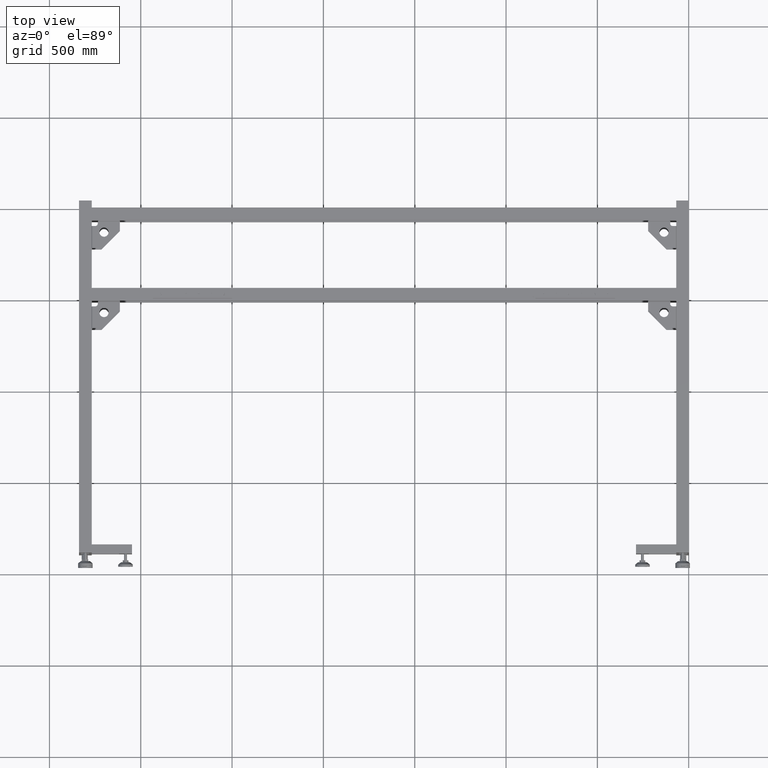
[diagram: clean part render]
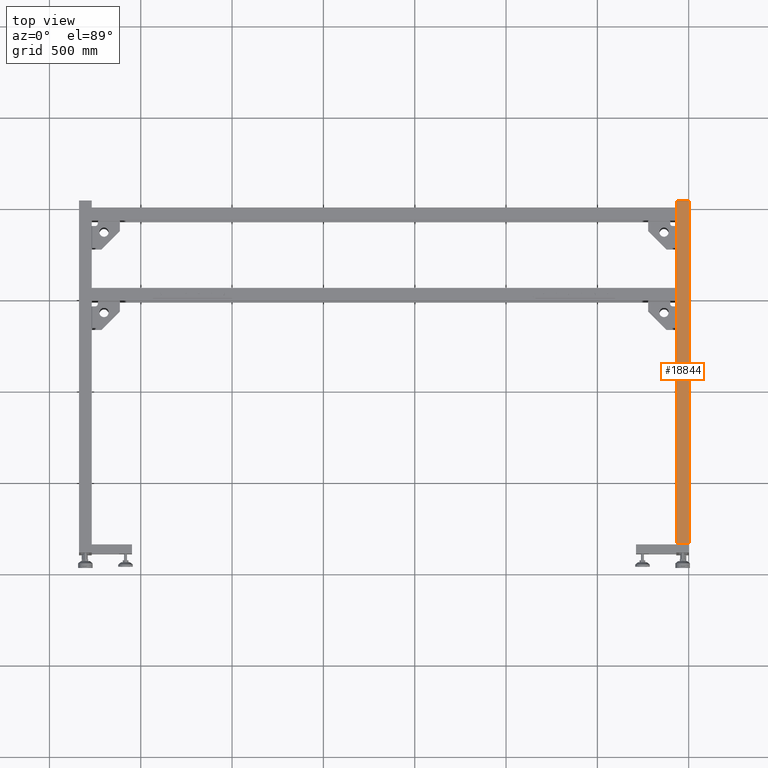
[diagram: same view with one face highlighted and labeled with its STEP entity id]
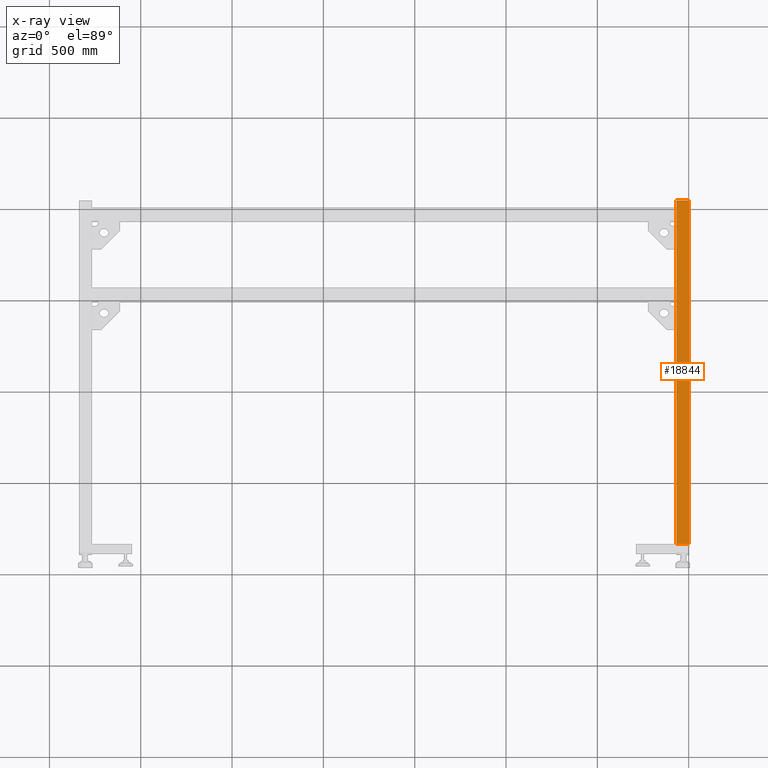
[diagram: x-ray of the same camera — body ghosted, the highlighted face saturated]
A machine part, top view. The second image highlights one B-rep face of the part: STEP entity #18844.
The next image is the same camera in x-ray: the body ghosted, the highlighted face saturated — about 0% of this face is hidden behind the body in this view.
In plain terms, the highlighted planar face has unit normal (0, -0, -1).
Its self-contained STEP definition (entity closure, byte-faithful):
#1355 = ORIENTED_EDGE ( 'NONE', *, *, #64538, .F. ) ;
#4251 = VERTEX_POINT ( 'NONE', #30326 ) ;
#4723 = DIRECTION ( 'NONE',  ( 0.000000000000000000, -0.000000000000000000, -1.000000000000000000 ) ) ;
#6874 = EDGE_CURVE ( 'NONE', #24596, #14394, #61690, .T. ) ;
#7368 = LINE ( 'NONE', #19636, #14964 ) ;
#7399 = ORIENTED_EDGE ( 'NONE', *, *, #49551, .T. ) ;
#12030 = CARTESIAN_POINT ( 'NONE',  ( 1931.827512562814491, 986.4410804020120622, 250.0000000000000000 ) ) ;
#12584 = DIRECTION ( 'NONE',  ( 1.000000000000000000, 4.543257172554223644E-16, 0.000000000000000000 ) ) ;
#13719 = EDGE_CURVE ( 'NONE', #14394, #37972, #55825, .T. ) ;
#14394 = VERTEX_POINT ( 'NONE', #73962 ) ;
#14859 = VECTOR ( 'NONE', #29672, 1000.000000000000000 ) ;
#14964 = VECTOR ( 'NONE', #32343, 1000.000000000000000 ) ;
#17370 = CARTESIAN_POINT ( 'NONE',  ( 1966.827512562814263, 1011.441080402012176, 250.0000000000000000 ) ) ;
#17521 = VERTEX_POINT ( 'NONE', #40252 ) ;
#17526 = VECTOR ( 'NONE', #23885, 1000.000000000000000 ) ;
#18265 = CARTESIAN_POINT ( 'NONE',  ( 1931.827512562814491, 986.4410804020120622, 250.0000000000000000 ) ) ;
#18844 = ADVANCED_FACE ( 'NONE', ( #41159 ), #53437, .F. ) ;
#19262 = CARTESIAN_POINT ( 'NONE',  ( 1931.811469511922496, 986.4410804020146770, 249.9999999999999716 ) ) ;
#19567 = CARTESIAN_POINT ( 'NONE',  ( 1931.827512562814491, 1036.441080402012176, 250.0000000000000000 ) ) ;
#19636 = CARTESIAN_POINT ( 'NONE',  ( 1931.827512562814491, -844.5589195979878241, 249.9999999999999716 ) ) ;
#19804 = VERTEX_POINT ( 'NONE', #25052 ) ;
#20082 = DIRECTION ( 'NONE',  ( -1.000000000000000000, -2.039995195632243709E-15, 0.000000000000000000 ) ) ;
#23885 = DIRECTION ( 'NONE',  ( 4.543257172554223644E-16, -1.000000000000000000, 0.000000000000000000 ) ) ;
#24596 = VERTEX_POINT ( 'NONE', #19567 ) ;
#25052 = CARTESIAN_POINT ( 'NONE',  ( 1931.827512562814491, 996.9410804020119485, 249.9999999999999716 ) ) ;
#25387 = LINE ( 'NONE', #19262, #41282 ) ;
#26941 = EDGE_CURVE ( 'NONE', #4251, #44653, #43440, .T. ) ;
#29128 = ORIENTED_EDGE ( 'NONE', *, *, #13719, .F. ) ;
#29672 = DIRECTION ( 'NONE',  ( -4.543257172554223644E-16, 1.000000000000000000, 0.000000000000000000 ) ) ;
#29771 = VECTOR ( 'NONE', #12584, 1000.000000000000000 ) ;
#30326 = CARTESIAN_POINT ( 'NONE',  ( 1931.827512562813808, 919.4410804020121759, 249.9999999999999716 ) ) ;
#30364 = ORIENTED_EDGE ( 'NONE', *, *, #35595, .F. ) ;
#30952 = ORIENTED_EDGE ( 'NONE', *, *, #52151, .T. ) ;
#32012 = CARTESIAN_POINT ( 'NONE',  ( 1931.827512562814491, -844.5589195979878241, 249.9999999999999716 ) ) ;
#32343 = DIRECTION ( 'NONE',  ( -4.543257172554223644E-16, 1.000000000000000000, 0.000000000000000000 ) ) ;
#33070 = EDGE_LOOP ( 'NONE', ( #41446, #64398, #30952, #77175, #30364, #7399, #29128, #63059, #1355 ) ) ;
#33172 = CARTESIAN_POINT ( 'NONE',  ( 2001.827512562814491, 986.4410804020120622, 250.0000000000000000 ) ) ;
#33475 = VERTEX_POINT ( 'NONE', #32012 ) ;
#35595 = EDGE_CURVE ( 'NONE', #33475, #4251, #7368, .T. ) ;
#35785 = LINE ( 'NONE', #12030, #14859 ) ;
#37972 = VERTEX_POINT ( 'NONE', #67713 ) ;
#40252 = CARTESIAN_POINT ( 'NONE',  ( 1931.827512562814491, 926.9410804020120622, 249.9999999999999716 ) ) ;
#41159 = FACE_OUTER_BOUND ( 'NONE', #33070, .T. ) ;
#41282 = VECTOR ( 'NONE', #50763, 1000.000000000000000 ) ;
#41446 = ORIENTED_EDGE ( 'NONE', *, *, #74276, .F. ) ;
#42353 = DIRECTION ( 'NONE',  ( 4.543257172554223644E-16, -1.000000000000000000, 0.000000000000000000 ) ) ;
#43271 = CARTESIAN_POINT ( 'NONE',  ( 2001.827512562814491, 1036.441080402012176, 250.0000000000000000 ) ) ;
#43440 = LINE ( 'NONE', #44656, #69802 ) ;
#44653 = VERTEX_POINT ( 'NONE', #47843 ) ;
#44656 = CARTESIAN_POINT ( 'NONE',  ( 2001.827512562813581, 919.4410804020147907, 249.9999999999999716 ) ) ;
#47387 = EDGE_CURVE ( 'NONE', #69562, #17521, #60380, .T. ) ;
#47843 = CARTESIAN_POINT ( 'NONE',  ( 1931.811469511922496, 919.4410804020146770, 249.9999999999999716 ) ) ;
#49102 = CARTESIAN_POINT ( 'NONE',  ( 1931.811469511922496, 926.9410804020121759, 249.9999999999999716 ) ) ;
#49125 = CARTESIAN_POINT ( 'NONE',  ( 2001.827512562814491, -844.5589195979878241, 249.9999999999999716 ) ) ;
#49551 = EDGE_CURVE ( 'NONE', #33475, #37972, #55264, .T. ) ;
#50260 = VECTOR ( 'NONE', #61035, 1000.000000000000000 ) ;
#50763 = DIRECTION ( 'NONE',  ( 1.454325717255422245E-15, -1.000000000000000000, -0.000000000000000000 ) ) ;
#52151 = EDGE_CURVE ( 'NONE', #69562, #44653, #25387, .T. ) ;
#53437 = PLANE ( 'NONE',  #78306 ) ;
#54237 = DIRECTION ( 'NONE',  ( 1.000000000000000000, 8.992142049428443691E-16, 0.000000000000000000 ) ) ;
#55264 = LINE ( 'NONE', #49125, #50260 ) ;
#55825 = LINE ( 'NONE', #33172, #17526 ) ;
#60380 = LINE ( 'NONE', #79224, #70863 ) ;
#61035 = DIRECTION ( 'NONE',  ( 1.000000000000000000, 4.543257172554223644E-16, 0.000000000000000000 ) ) ;
#61690 = LINE ( 'NONE', #43271, #29771 ) ;
#63059 = ORIENTED_EDGE ( 'NONE', *, *, #6874, .F. ) ;
#64398 = ORIENTED_EDGE ( 'NONE', *, *, #47387, .F. ) ;
#64538 = EDGE_CURVE ( 'NONE', #19804, #24596, #35785, .T. ) ;
#67713 = CARTESIAN_POINT ( 'NONE',  ( 2001.827512562814491, -844.5589195979878241, 249.9999999999999716 ) ) ;
#68199 = DIRECTION ( 'NONE',  ( -4.543257172554223644E-16, 1.000000000000000000, 0.000000000000000000 ) ) ;
#69562 = VERTEX_POINT ( 'NONE', #49102 ) ;
#69802 = VECTOR ( 'NONE', #20082, 1000.000000000000000 ) ;
#70863 = VECTOR ( 'NONE', #54237, 1000.000000000000000 ) ;
#73463 = VECTOR ( 'NONE', #68199, 1000.000000000000000 ) ;
#73962 = CARTESIAN_POINT ( 'NONE',  ( 2001.827512562814491, 1036.441080402012176, 250.0000000000000000 ) ) ;
#74276 = EDGE_CURVE ( 'NONE', #17521, #19804, #74356, .T. ) ;
#74356 = LINE ( 'NONE', #18265, #73463 ) ;
#77175 = ORIENTED_EDGE ( 'NONE', *, *, #26941, .F. ) ;
#78306 = AXIS2_PLACEMENT_3D ( 'NONE', #17370, #4723, #42353 ) ;
#79224 = CARTESIAN_POINT ( 'NONE',  ( 1931.827512562814491, 926.9410804020120622, 249.9999999999999716 ) ) ;